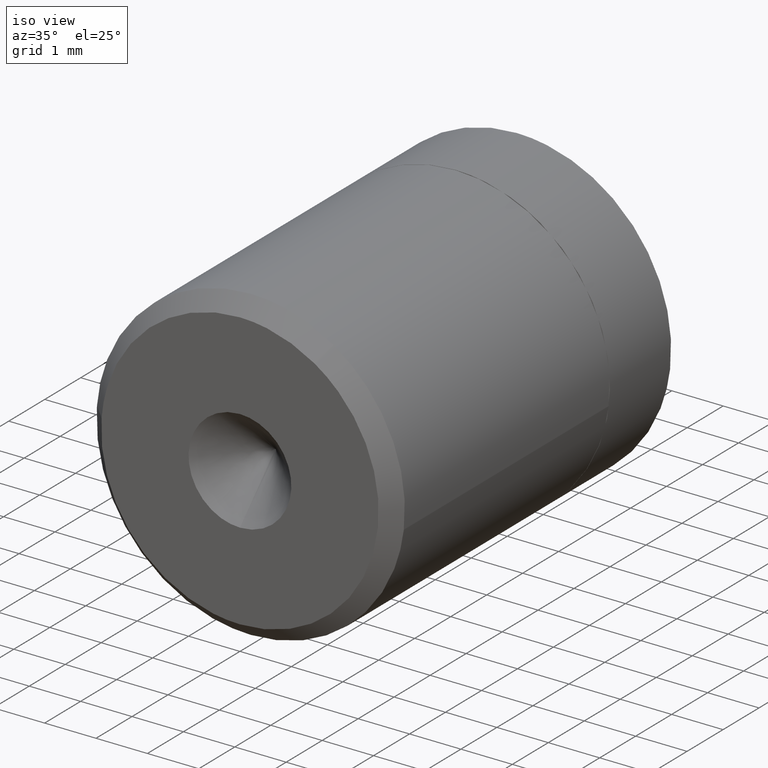
[diagram: clean part render]
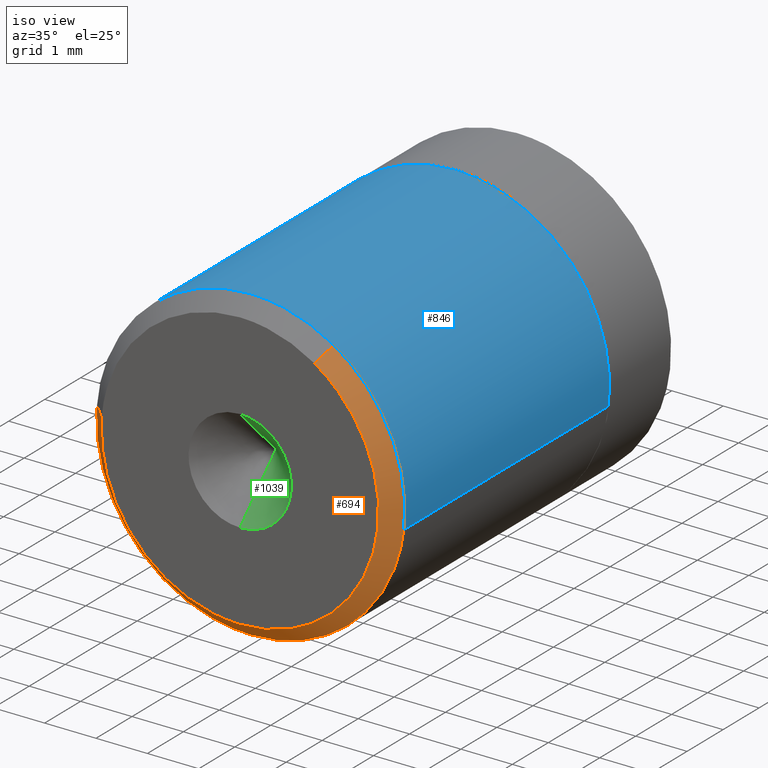
[diagram: same view with three faces highlighted in distinct colors, each labeled with its STEP entity id]
A machine part, iso view with three faces highlighted in distinct colors.
Their STEP definitions:

[orange] entity #694 — the highlighted face is a freeform B-spline surface patch.
#558=CARTESIAN_POINT('',(1.448163812650967,-0.007500075000000,2.269886195683443));
#559=CARTESIAN_POINT('',(2.811039513938992,-0.007500075000000,1.400385656185087));
#560=CARTESIAN_POINT('',(2.684200942916714,-0.007500075000000,-0.211251195667800));
#561=CARTESIAN_POINT('',(2.472949747248917,-0.007500075000000,-2.895452138584514));
#562=CARTESIAN_POINT('',(-0.211251195667797,-0.007500075000000,-2.684200942916716));
#563=CARTESIAN_POINT('',(-2.895452138584511,-0.007500075000000,-2.472949747248920));
#564=CARTESIAN_POINT('',(-2.684200942916714,-0.007500075000000,0.211251195667795));
#565=CARTESIAN_POINT('',(1.617687094530802,0.307690576874989,2.535600995365938));
#566=CARTESIAN_POINT('',(3.140102179180226,0.307690576874989,1.564315986621509));
#567=CARTESIAN_POINT('',(2.998415777656450,0.307690576874989,-0.235980439471433));
#568=CARTESIAN_POINT('',(2.762435338185019,0.307690576874989,-3.234396217127883));
#569=CARTESIAN_POINT('',(-0.235980439471430,0.307690576874989,-2.998415777656452));
#570=CARTESIAN_POINT('',(-3.234396217127880,0.307690576874989,-2.762435338185022));
#571=CARTESIAN_POINT('',(-2.998415777656450,0.307690576874989,0.235980439471428));
#579=(BOUNDED_SURFACE()B_SPLINE_SURFACE(2,1,((#558,#565),(#559,#566),(#560,#567),(#561,#568),(#562,#569),(#563,#570),(#564,#571)),.UNSPECIFIED.,.F.,.F.,.U.)B_SPLINE_SURFACE_WITH_KNOTS((3,2,2,3),(2,2),(0.0,3.388643845682990,8.371943618746213,13.355243391809431),(0.0,0.445743923008491),.UNSPECIFIED.)GEOMETRIC_REPRESENTATION_ITEM()RATIONAL_B_SPLINE_SURFACE(((0.872532871172386,0.872532871172386),(0.800832611206852,0.800832611206852),(1.0,1.0),(0.707106781186548,0.707106781186548),(1.0,1.0),(0.707106781186548,0.707106781186548),(1.0,1.0)))REPRESENTATION_ITEM('')SURFACE());
#580=CARTESIAN_POINT('',(2.979028813713615,0.300002999999990,-0.354100730103881));
#581=VERTEX_POINT('',#580);
#582=CARTESIAN_POINT('',(1.613552380340769,0.300003000000120,2.529120146591974));
#583=VERTEX_POINT('',#582);
#584=CARTESIAN_POINT('',(2.979028813713615,0.300002999999990,-0.354100730103881));
#585=CARTESIAN_POINT('',(3.000000000000000,0.300002999999989,-0.177671361588901));
#586=CARTESIAN_POINT('',(3.0,0.300002999999989,-2.449213E-015));
#587=CARTESIAN_POINT('',(3.000000000000000,0.300002999999989,1.644580968040915));
#588=CARTESIAN_POINT('',(1.613552380340768,0.300003000000120,2.529120146591973));
#596=(BOUNDED_CURVE()B_SPLINE_CURVE(2,(#584,#585,#586,#587,#588),.UNSPECIFIED.,.F.,.U.)B_SPLINE_CURVE_WITH_KNOTS((3,2,3),(0.229562585495049,0.250000000000000,0.407950112627318),.UNSPECIFIED.)CURVE()GEOMETRIC_REPRESENTATION_ITEM()RATIONAL_B_SPLINE_CURVE((0.956026973672220,0.976056079525681,1.0,0.814949932402550,0.863729296954780))REPRESENTATION_ITEM(''));
#597=EDGE_CURVE('',#581,#583,#596,.T.);
#598=ORIENTED_EDGE('',*,*,#597,.T.);
#599=CARTESIAN_POINT('',(1.452197680157885,1.408836E-013,2.276208974972598));
#600=VERTEX_POINT('',#599);
#601=CARTESIAN_POINT('',(1.452197680157885,1.408836E-013,2.276208974972598));
#602=CARTESIAN_POINT('',(1.613552380340769,0.300003000000120,2.529120146591974));
#603=QUASI_UNIFORM_CURVE('',1,(#601,#602),.UNSPECIFIED.,.F.,.U.);
#604=EDGE_CURVE('',#600,#583,#603,.T.);
#605=ORIENTED_EDGE('',*,*,#604,.F.);
#606=CARTESIAN_POINT('',(0.0,-4.959658E-016,-2.700001000000003));
#607=VERTEX_POINT('',#606);
#608=CARTESIAN_POINT('',(0.0,-4.959658E-016,-2.700001000000003));
#609=CARTESIAN_POINT('',(2.700001000000000,-4.959658E-016,-2.700001000000003));
#610=CARTESIAN_POINT('',(2.700001000000000,-4.959658E-016,-2.449213E-015));
#611=CARTESIAN_POINT('',(2.700001000000000,-4.959658E-016,1.480123419429880));
#612=CARTESIAN_POINT('',(1.452197680157885,1.408836E-013,2.276208974972599));
#620=(BOUNDED_CURVE()B_SPLINE_CURVE(2,(#608,#609,#610,#611,#612),.UNSPECIFIED.,.F.,.U.)B_SPLINE_CURVE_WITH_KNOTS((3,2,3),(0.0,0.250000000000000,0.407950112627266),.UNSPECIFIED.)CURVE()GEOMETRIC_REPRESENTATION_ITEM()RATIONAL_B_SPLINE_CURVE((1.0,0.707106781186548,1.0,0.814949932402611,0.863729296954748))REPRESENTATION_ITEM(''));
#621=EDGE_CURVE('',#607,#600,#620,.T.);
#622=ORIENTED_EDGE('',*,*,#621,.F.);
#623=CARTESIAN_POINT('',(-2.691677797996921,3.563548E-013,0.211839636927013));
#624=VERTEX_POINT('',#623);
#625=CARTESIAN_POINT('',(-2.691677797996921,3.563548E-013,0.211839636927013));
#626=CARTESIAN_POINT('',(-2.700000999999999,-4.959658E-016,0.106083328213535));
#627=CARTESIAN_POINT('',(-2.700001000000000,-4.959658E-016,-2.449213E-015));
#628=CARTESIAN_POINT('',(-2.700001000000000,-4.959658E-016,-2.700001000000003));
#629=CARTESIAN_POINT('',(0.0,-4.959658E-016,-2.700001000000003));
#637=(BOUNDED_CURVE()B_SPLINE_CURVE(2,(#625,#626,#627,#628,#629),.UNSPECIFIED.,.F.,.U.)B_SPLINE_CURVE_WITH_KNOTS((3,2,3),(0.736331300632422,0.750000000000000,1.0),.UNSPECIFIED.)CURVE()GEOMETRIC_REPRESENTATION_ITEM()RATIONAL_B_SPLINE_CURVE((0.969723356171095,0.983986122580946,1.0,0.707106781186548,1.0))REPRESENTATION_ITEM(''));
#638=EDGE_CURVE('',#624,#607,#637,.T.);
#639=ORIENTED_EDGE('',*,*,#638,.F.);
#640=CARTESIAN_POINT('',(-2.990751666387796,0.300002643337939,0.235376995594097));
#641=VERTEX_POINT('',#640);
#642=CARTESIAN_POINT('',(-2.691677797996921,3.563548E-013,0.211839636927013));
#643=CARTESIAN_POINT('',(-2.990751666387796,0.300002643337939,0.235376995594097));
#644=QUASI_UNIFORM_CURVE('',1,(#642,#643),.UNSPECIFIED.,.F.,.U.);
#645=EDGE_CURVE('',#624,#641,#644,.T.);
#646=ORIENTED_EDGE('',*,*,#645,.T.);
#647=CARTESIAN_POINT('',(-2.994404538743613,0.300002999999987,0.183143272729639));
#648=VERTEX_POINT('',#647);
#649=CARTESIAN_POINT('',(-2.990751666387797,0.300002643337939,0.235376995594097));
#650=CARTESIAN_POINT('',(-2.992806216015756,0.300002999999989,0.209275954329701));
#651=CARTESIAN_POINT('',(-2.994404538743613,0.300002999999987,0.183143272729639));
#659=(BOUNDED_CURVE()B_SPLINE_CURVE(2,(#649,#650,#651),.UNSPECIFIED.,.F.,.U.)B_SPLINE_CURVE_WITH_KNOTS((3,3),(0.736331330851654,0.739333097418510),.UNSPECIFIED.)CURVE()GEOMETRIC_REPRESENTATION_ITEM()RATIONAL_B_SPLINE_CURVE((0.969723419236336,0.972855648999367,0.976072331382433))REPRESENTATION_ITEM(''));
#660=EDGE_CURVE('',#641,#648,#659,.T.);
#661=ORIENTED_EDGE('',*,*,#660,.T.);
#662=CARTESIAN_POINT('',(0.0,0.300002999999989,-3.000000000000003));
#663=VERTEX_POINT('',#662);
#664=CARTESIAN_POINT('',(-2.994404538743613,0.300002999999987,0.183143272729639));
#665=CARTESIAN_POINT('',(-3.000000000000000,0.300002999999989,0.091657113669568));
#666=CARTESIAN_POINT('',(-3.0,0.300002999999989,-2.449213E-015));
#667=CARTESIAN_POINT('',(-3.0,0.300002999999989,-3.000000000000003));
#668=CARTESIAN_POINT('',(0.0,0.300002999999989,-3.000000000000003));
#676=(BOUNDED_CURVE()B_SPLINE_CURVE(2,(#664,#665,#666,#667,#668),.UNSPECIFIED.,.F.,.U.)B_SPLINE_CURVE_WITH_KNOTS((3,2,3),(0.739333097418510,0.750000000000000,1.0),.UNSPECIFIED.)CURVE()GEOMETRIC_REPRESENTATION_ITEM()RATIONAL_B_SPLINE_CURVE((0.976072331382433,0.987502946272551,1.0,0.707106781186548,1.0))REPRESENTATION_ITEM(''));
#677=EDGE_CURVE('',#648,#663,#676,.T.);
#678=ORIENTED_EDGE('',*,*,#677,.T.);
#679=CARTESIAN_POINT('',(0.0,0.300002999999989,-3.000000000000003));
#680=CARTESIAN_POINT('',(2.664525355762294,0.300002999999989,-3.000000000000003));
#681=CARTESIAN_POINT('',(2.979028813713615,0.300002999999990,-0.354100730103881));
#689=(BOUNDED_CURVE()B_SPLINE_CURVE(2,(#679,#680,#681),.UNSPECIFIED.,.F.,.U.)B_SPLINE_CURVE_WITH_KNOTS((3,3),(0.0,0.229562585495049),.UNSPECIFIED.)CURVE()GEOMETRIC_REPRESENTATION_ITEM()RATIONAL_B_SPLINE_CURVE((1.0,0.731050701660866,0.956026973672220))REPRESENTATION_ITEM(''));
#690=EDGE_CURVE('',#663,#581,#689,.T.);
#691=ORIENTED_EDGE('',*,*,#690,.T.);
#692=EDGE_LOOP('',(#598,#605,#622,#639,#646,#661,#678,#691));
#693=FACE_OUTER_BOUND('',#692,.T.);
#694=ADVANCED_FACE('',(#693),#579,.T.);

[blue] entity #846 — the highlighted face is a freeform B-spline surface patch.
#580=CARTESIAN_POINT('',(2.979028813713615,0.300002999999990,-0.354100730103881));
#581=VERTEX_POINT('',#580);
#582=CARTESIAN_POINT('',(1.613552380340769,0.300003000000120,2.529120146591974));
#583=VERTEX_POINT('',#582);
#584=CARTESIAN_POINT('',(2.979028813713615,0.300002999999990,-0.354100730103881));
#585=CARTESIAN_POINT('',(3.000000000000000,0.300002999999989,-0.177671361588901));
#586=CARTESIAN_POINT('',(3.0,0.300002999999989,-2.449213E-015));
#587=CARTESIAN_POINT('',(3.000000000000000,0.300002999999989,1.644580968040915));
#588=CARTESIAN_POINT('',(1.613552380340768,0.300003000000120,2.529120146591973));
#596=(BOUNDED_CURVE()B_SPLINE_CURVE(2,(#584,#585,#586,#587,#588),.UNSPECIFIED.,.F.,.U.)B_SPLINE_CURVE_WITH_KNOTS((3,2,3),(0.229562585495049,0.250000000000000,0.407950112627318),.UNSPECIFIED.)CURVE()GEOMETRIC_REPRESENTATION_ITEM()RATIONAL_B_SPLINE_CURVE((0.956026973672220,0.976056079525681,1.0,0.814949932402550,0.863729296954780))REPRESENTATION_ITEM(''));
#597=EDGE_CURVE('',#581,#583,#596,.T.);
#640=CARTESIAN_POINT('',(-2.990751666387796,0.300002643337939,0.235376995594097));
#641=VERTEX_POINT('',#640);
#647=CARTESIAN_POINT('',(-2.994404538743613,0.300002999999987,0.183143272729639));
#648=VERTEX_POINT('',#647);
#649=CARTESIAN_POINT('',(-2.990751666387797,0.300002643337939,0.235376995594097));
#650=CARTESIAN_POINT('',(-2.992806216015756,0.300002999999989,0.209275954329701));
#651=CARTESIAN_POINT('',(-2.994404538743613,0.300002999999987,0.183143272729639));
#659=(BOUNDED_CURVE()B_SPLINE_CURVE(2,(#649,#650,#651),.UNSPECIFIED.,.F.,.U.)B_SPLINE_CURVE_WITH_KNOTS((3,3),(0.736331330851654,0.739333097418510),.UNSPECIFIED.)CURVE()GEOMETRIC_REPRESENTATION_ITEM()RATIONAL_B_SPLINE_CURVE((0.969723419236336,0.972855648999367,0.976072331382433))REPRESENTATION_ITEM(''));
#660=EDGE_CURVE('',#641,#648,#659,.T.);
#713=CARTESIAN_POINT('',(0.0,0.300002999999989,2.999999999999997));
#714=VERTEX_POINT('',#713);
#715=CARTESIAN_POINT('',(1.613552380340768,0.300003000000120,2.529120146591973));
#716=CARTESIAN_POINT('',(0.875484166140482,0.300002999999989,2.999999999999997));
#717=CARTESIAN_POINT('',(0.0,0.300002999999989,2.999999999999997));
#725=(BOUNDED_CURVE()B_SPLINE_CURVE(2,(#715,#716,#717),.UNSPECIFIED.,.F.,.U.)B_SPLINE_CURVE_WITH_KNOTS((3,3),(0.407950112627318,0.500000000000000),.UNSPECIFIED.)CURVE()GEOMETRIC_REPRESENTATION_ITEM()RATIONAL_B_SPLINE_CURVE((0.863729296954780,0.892156848783997,1.0))REPRESENTATION_ITEM(''));
#726=EDGE_CURVE('',#583,#714,#725,.T.);
#728=CARTESIAN_POINT('',(0.0,0.300002999999989,2.999999999999997));
#729=CARTESIAN_POINT('',(-2.773171965343828,0.300002999999989,2.999999999999999));
#730=CARTESIAN_POINT('',(-2.990751666387796,0.300002643337939,0.235376995594097));
#738=(BOUNDED_CURVE()B_SPLINE_CURVE(2,(#728,#729,#730),.UNSPECIFIED.,.F.,.U.)B_SPLINE_CURVE_WITH_KNOTS((3,3),(0.500000000000000,0.736331330851653),.UNSPECIFIED.)CURVE()GEOMETRIC_REPRESENTATION_ITEM()RATIONAL_B_SPLINE_CURVE((1.0,0.723120623201569,0.969723419236335))REPRESENTATION_ITEM(''));
#739=EDGE_CURVE('',#714,#641,#738,.T.);
#774=CARTESIAN_POINT('',(2.979028579091000,6.132249925000002,-0.354102703970278));
#775=CARTESIAN_POINT('',(2.989162846345817,6.132249925000001,-0.268844185913936));
#776=CARTESIAN_POINT('',(2.994404395265600,6.132249925000001,-0.183145618604573));
#777=CARTESIAN_POINT('',(3.177550013870171,6.132249925000001,2.811258776661027));
#778=CARTESIAN_POINT('',(0.183145618604571,6.132249925000001,2.994404395265597));
#779=CARTESIAN_POINT('',(-2.811258776661029,6.132249925000001,3.177550013870170));
#780=CARTESIAN_POINT('',(-2.994404395265600,6.132249925000001,0.183145618604568));
#781=CARTESIAN_POINT('',(2.979028579091000,0.154196826874989,-0.354102703970278));
#782=CARTESIAN_POINT('',(2.989162846345817,0.154196826874989,-0.268844185913936));
#783=CARTESIAN_POINT('',(2.994404395265600,0.154196826874989,-0.183145618604573));
#784=CARTESIAN_POINT('',(3.177550013870171,0.154196826874989,2.811258776661027));
#785=CARTESIAN_POINT('',(0.183145618604571,0.154196826874989,2.994404395265597));
#786=CARTESIAN_POINT('',(-2.811258776661029,0.154196826874989,3.177550013870170));
#787=CARTESIAN_POINT('',(-2.994404395265600,0.154196826874989,0.183145618604568));
#795=(BOUNDED_SURFACE()B_SPLINE_SURFACE(2,1,((#774,#781),(#775,#782),(#776,#783),(#777,#784),(#778,#785),(#779,#786),(#780,#787)),.UNSPECIFIED.,.F.,.F.,.U.)B_SPLINE_SURFACE_WITH_KNOTS((3,2,2,3),(2,2),(0.0,0.198822509939086,5.169385258416225,10.139948006893370),(0.0,5.978053098125013),.UNSPECIFIED.)GEOMETRIC_REPRESENTATION_ITEM()RATIONAL_B_SPLINE_SURFACE(((0.977505800795127,0.977505800795127),(0.988284271247462,0.988284271247462),(1.0,1.0),(0.707106781186548,0.707106781186548),(1.0,1.0),(0.707106781186548,0.707106781186548),(1.0,1.0)))REPRESENTATION_ITEM('')SURFACE());
#796=ORIENTED_EDGE('',*,*,#597,.F.);
#797=CARTESIAN_POINT('',(2.979028810819929,5.989999999999999,-0.354100754448426));
#798=VERTEX_POINT('',#797);
#799=CARTESIAN_POINT('',(2.979028810819929,5.989999999999999,-0.354100754448426));
#800=CARTESIAN_POINT('',(2.979028813713615,0.300002999999990,-0.354100730103881));
#801=QUASI_UNIFORM_CURVE('',1,(#799,#800),.UNSPECIFIED.,.F.,.U.);
#802=EDGE_CURVE('',#798,#581,#801,.T.);
#803=ORIENTED_EDGE('',*,*,#802,.F.);
#804=CARTESIAN_POINT('',(0.0,5.989999999999999,2.999999999999997));
#805=VERTEX_POINT('',#804);
#806=CARTESIAN_POINT('',(2.979028810819929,5.989999999999999,-0.354100754448426));
#807=CARTESIAN_POINT('',(3.000000000000000,5.989999999999999,-0.177671373889855));
#808=CARTESIAN_POINT('',(3.0,5.989999999999999,-2.449213E-015));
#809=CARTESIAN_POINT('',(3.0,5.989999999999998,2.999999999999998));
#810=CARTESIAN_POINT('',(0.0,5.989999999999999,2.999999999999997));
#818=(BOUNDED_CURVE()B_SPLINE_CURVE(2,(#806,#807,#808,#809,#810),.UNSPECIFIED.,.F.,.U.)B_SPLINE_CURVE_WITH_KNOTS((3,2,3),(0.229562584113959,0.250000000000000,0.500000000000000),.UNSPECIFIED.)CURVE()GEOMETRIC_REPRESENTATION_ITEM()RATIONAL_B_SPLINE_CURVE((0.956026970965224,0.976056077907633,1.0,0.707106781186548,1.0))REPRESENTATION_ITEM(''));
#819=EDGE_CURVE('',#798,#805,#818,.T.);
#820=ORIENTED_EDGE('',*,*,#819,.T.);
#821=CARTESIAN_POINT('',(-2.994404536972982,5.990000000000000,0.183143301679935));
#822=VERTEX_POINT('',#821);
#823=CARTESIAN_POINT('',(0.0,5.989999999999999,2.999999999999997));
#824=CARTESIAN_POINT('',(-2.822120388416223,5.989999999999998,2.999999999999999));
#825=CARTESIAN_POINT('',(-2.994404536972982,5.990000000000000,0.183143301679935));
#833=(BOUNDED_CURVE()B_SPLINE_CURVE(2,(#823,#824,#825),.UNSPECIFIED.,.F.,.U.)B_SPLINE_CURVE_WITH_KNOTS((3,3),(0.500000000000000,0.739333095750304),.UNSPECIFIED.)CURVE()GEOMETRIC_REPRESENTATION_ITEM()RATIONAL_B_SPLINE_CURVE((1.0,0.719603836868421,0.976072327807147))REPRESENTATION_ITEM(''));
#834=EDGE_CURVE('',#805,#822,#833,.T.);
#835=ORIENTED_EDGE('',*,*,#834,.T.);
#836=CARTESIAN_POINT('',(-2.994404536972982,5.990000000000000,0.183143301679935));
#837=CARTESIAN_POINT('',(-2.994404538743613,0.300002999999987,0.183143272729639));
#838=QUASI_UNIFORM_CURVE('',1,(#836,#837),.UNSPECIFIED.,.F.,.U.);
#839=EDGE_CURVE('',#822,#648,#838,.T.);
#840=ORIENTED_EDGE('',*,*,#839,.T.);
#841=ORIENTED_EDGE('',*,*,#660,.F.);
#842=ORIENTED_EDGE('',*,*,#739,.F.);
#843=ORIENTED_EDGE('',*,*,#726,.F.);
#844=EDGE_LOOP('',(#796,#803,#820,#835,#840,#841,#842,#843));
#845=FACE_OUTER_BOUND('',#844,.T.);
#846=ADVANCED_FACE('',(#845),#795,.T.);

[green] entity #1039 — the highlighted face is a freeform B-spline surface patch.
#920=CARTESIAN_POINT('',(0.0,3.636595E-016,0.999999999999998));
#921=VERTEX_POINT('',#920);
#922=CARTESIAN_POINT('',(0.0,3.636595E-016,-1.000000000000003));
#923=VERTEX_POINT('',#922);
#939=CARTESIAN_POINT('',(0.0,1.0,-2.449213E-015));
#940=VERTEX_POINT('',#939);
#941=CARTESIAN_POINT('',(0.0,1.0,-2.449213E-015));
#942=CARTESIAN_POINT('',(0.0,3.636595E-016,-1.000000000000003));
#943=QUASI_UNIFORM_CURVE('',1,(#941,#942),.UNSPECIFIED.,.F.,.U.);
#944=EDGE_CURVE('',#940,#923,#943,.T.);
#946=CARTESIAN_POINT('',(0.0,1.0,-2.449213E-015));
#947=CARTESIAN_POINT('',(0.0,3.636595E-016,0.999999999999998));
#948=QUASI_UNIFORM_CURVE('',1,(#946,#947),.UNSPECIFIED.,.F.,.U.);
#949=EDGE_CURVE('',#940,#921,#948,.T.);
#1002=CARTESIAN_POINT('',(0.0,1.000000000000002,-2.449213E-015));
#1003=CARTESIAN_POINT('',(-0.026847732608264,-0.025625000000000,1.025273543928055));
#1004=CARTESIAN_POINT('',(0.0,1.000000000000002,-2.449213E-015));
#1005=CARTESIAN_POINT('',(1.053565150959501,-0.025625000000000,1.053565150959502));
#1006=CARTESIAN_POINT('',(0.0,1.000000000000002,-2.449213E-015));
#1007=CARTESIAN_POINT('',(1.025273543928058,-0.025625000000000,-0.026847732608263));
#1008=CARTESIAN_POINT('',(0.0,1.000000000000002,-2.449213E-015));
#1009=CARTESIAN_POINT('',(0.996981936896615,-0.025625000000000,-1.107260616176029));
#1010=CARTESIAN_POINT('',(0.0,1.000000000000002,-2.449213E-015));
#1011=CARTESIAN_POINT('',(-0.080469610055870,-0.025625000000000,-1.022463340410044));
#1019=(BOUNDED_SURFACE()B_SPLINE_SURFACE(1,2,((#1002,#1004,#1006,#1008,#1010),(#1003,#1005,#1007,#1009,#1011)),.UNSPECIFIED.,.F.,.F.,.U.)B_SPLINE_SURFACE_WITH_KNOTS((2,2),(3,2,3),(0.0,1.0),(0.0,1.0,2.0),.UNSPECIFIED.)GEOMETRIC_REPRESENTATION_ITEM()RATIONAL_B_SPLINE_SURFACE(((1.0,0.688354575693754,1.0,0.688354575693754,1.0),(1.0,0.688354575693754,1.0,0.688354575693754,1.0)))REPRESENTATION_ITEM('')SURFACE());
#1020=ORIENTED_EDGE('',*,*,#944,.T.);
#1021=CARTESIAN_POINT('',(0.0,0.0,-1.000000000000002));
#1022=CARTESIAN_POINT('',(1.0,0.0,-1.000000000000002));
#1023=CARTESIAN_POINT('',(1.0,0.0,-2.449213E-015));
#1024=CARTESIAN_POINT('',(1.0,0.0,0.999999999999998));
#1025=CARTESIAN_POINT('',(0.0,0.0,0.999999999999998));
#1033=(BOUNDED_CURVE()B_SPLINE_CURVE(2,(#1021,#1022,#1023,#1024,#1025),.UNSPECIFIED.,.F.,.U.)B_SPLINE_CURVE_WITH_KNOTS((3,2,3),(0.0,0.500000000000000,1.0),.UNSPECIFIED.)CURVE()GEOMETRIC_REPRESENTATION_ITEM()RATIONAL_B_SPLINE_CURVE((1.0,0.707106781186548,1.0,0.707106781186548,1.0))REPRESENTATION_ITEM(''));
#1034=EDGE_CURVE('',#923,#921,#1033,.T.);
#1035=ORIENTED_EDGE('',*,*,#1034,.T.);
#1036=ORIENTED_EDGE('',*,*,#949,.F.);
#1037=EDGE_LOOP('',(#1020,#1035,#1036));
#1038=FACE_OUTER_BOUND('',#1037,.T.);
#1039=ADVANCED_FACE('',(#1038),#1019,.F.);